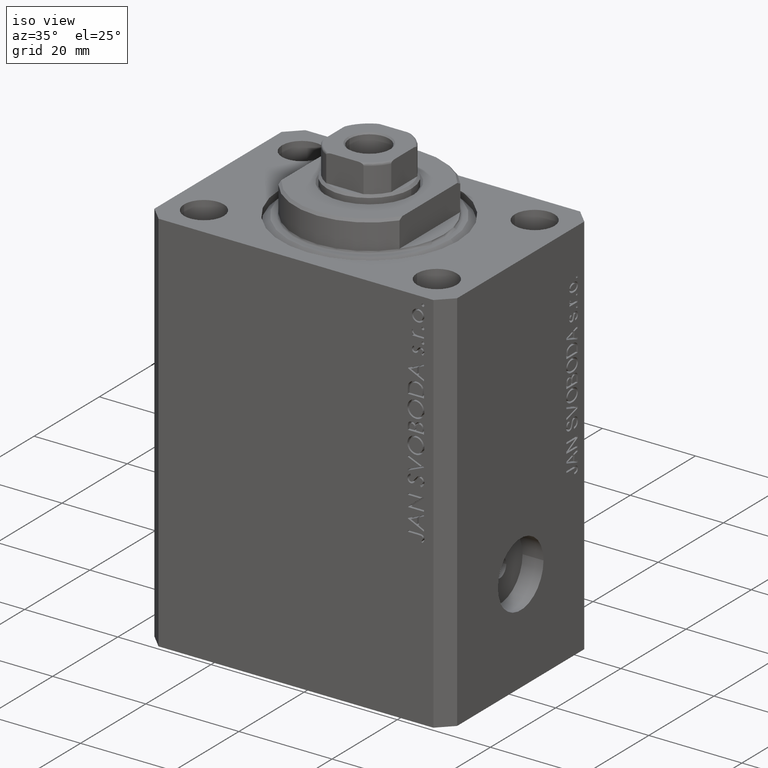
[diagram: clean part render]
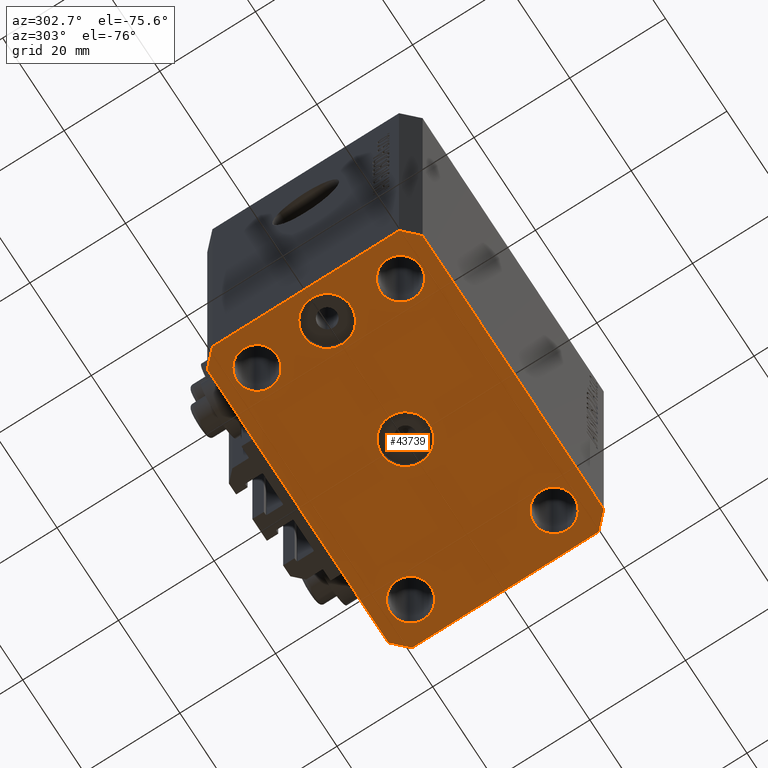
[diagram: tour spotlight — one face highlighted and labeled with its STEP entity id]
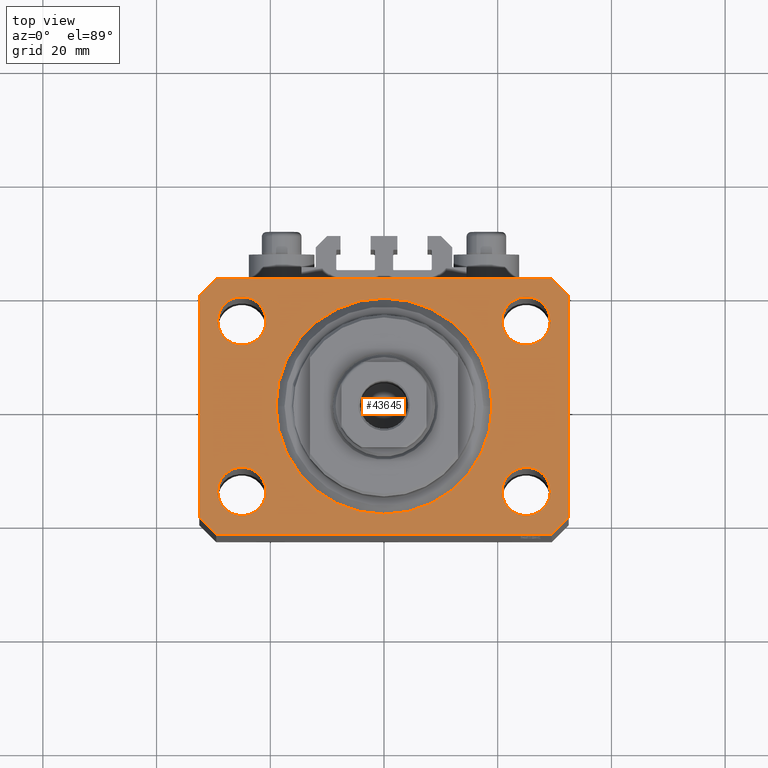
[diagram: tour spotlight — one face highlighted and labeled with its STEP entity id]
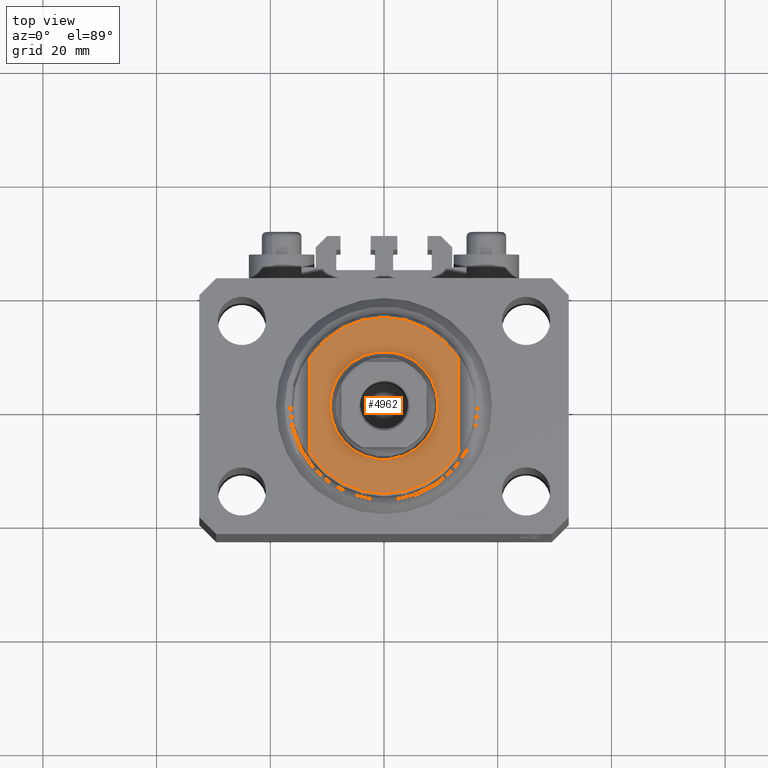
[diagram: tour spotlight — one face highlighted and labeled with its STEP entity id]
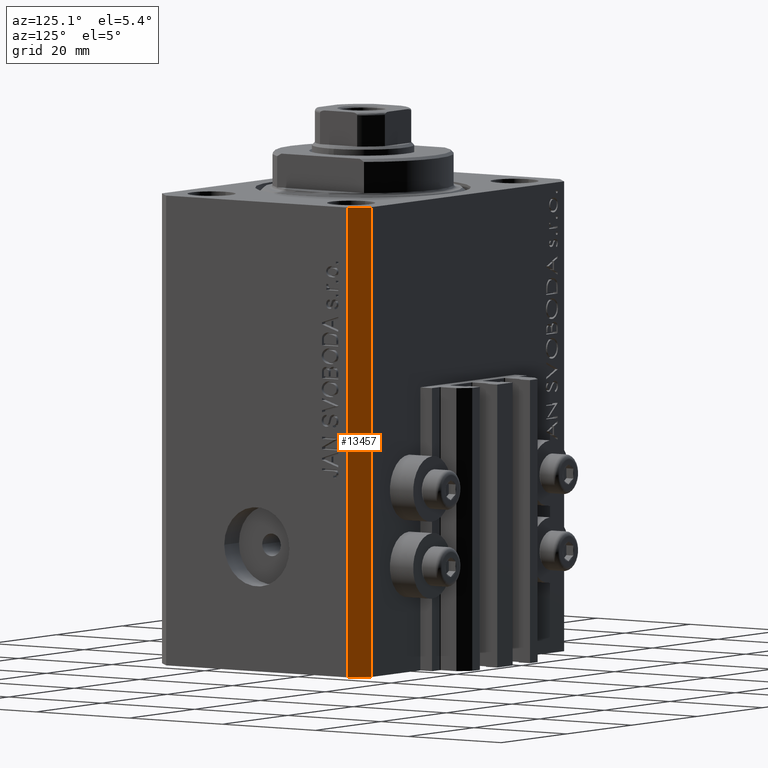
[diagram: tour spotlight — one face highlighted and labeled with its STEP entity id]
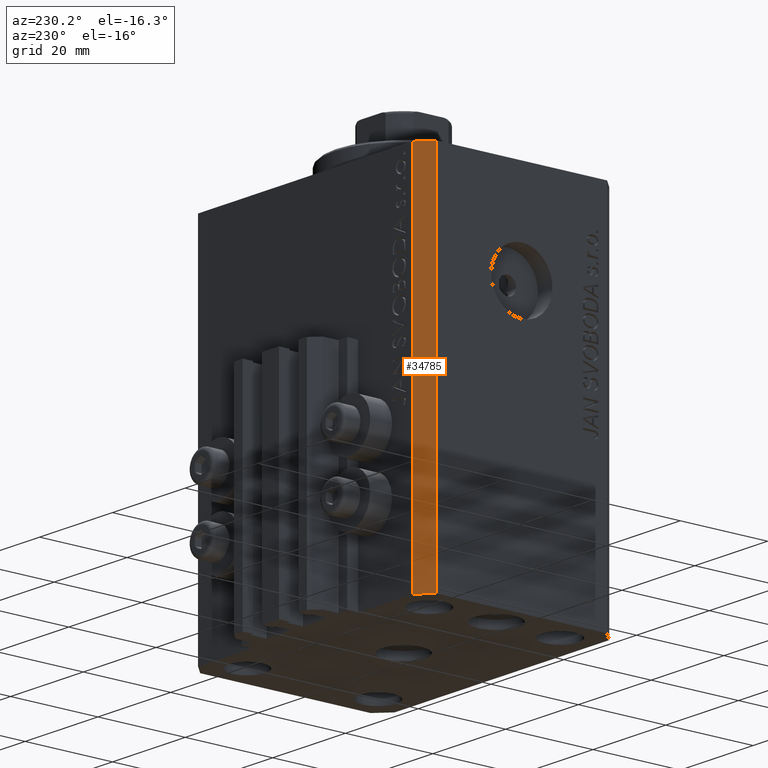
[diagram: tour spotlight — one face highlighted and labeled with its STEP entity id]
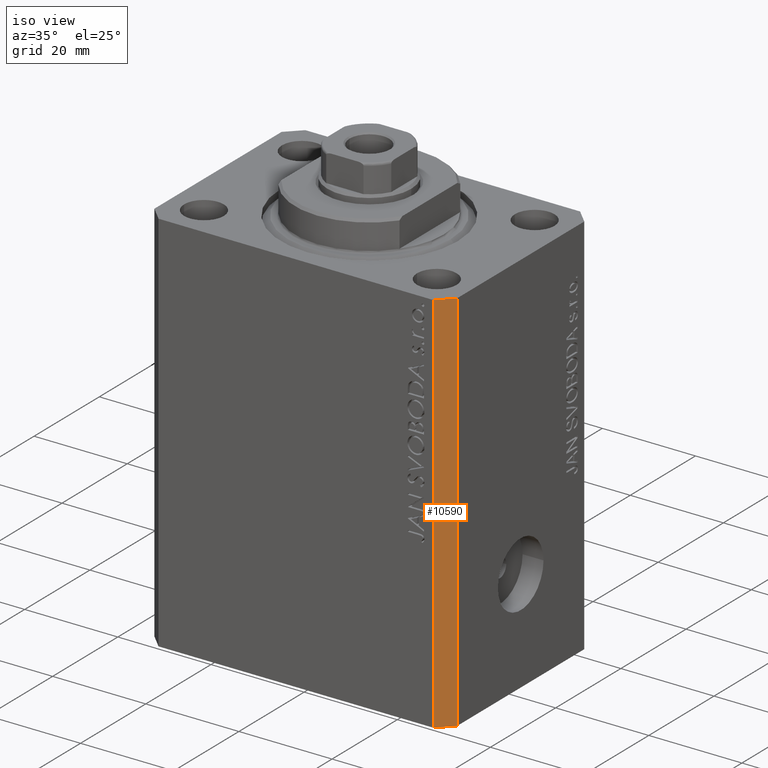
[diagram: tour spotlight — one face highlighted and labeled with its STEP entity id]
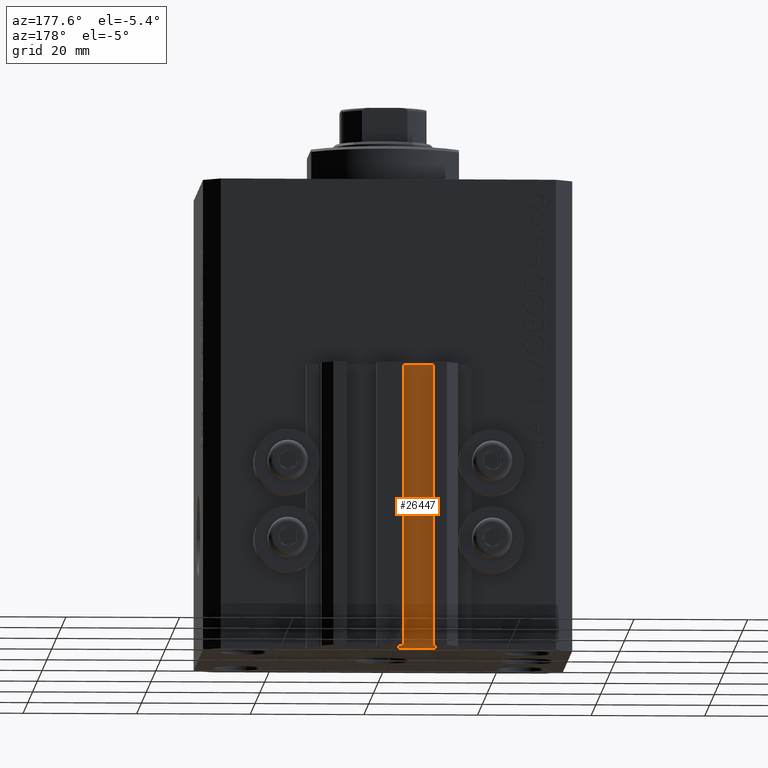
[diagram: tour spotlight — one face highlighted and labeled with its STEP entity id]
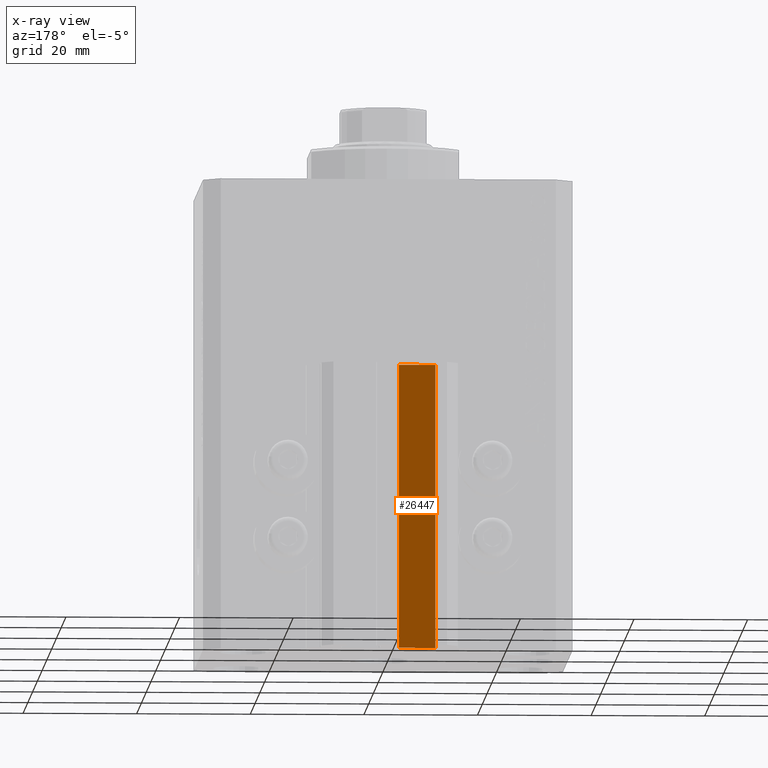
[diagram: x-ray of the same camera — body ghosted, this tour face saturated]
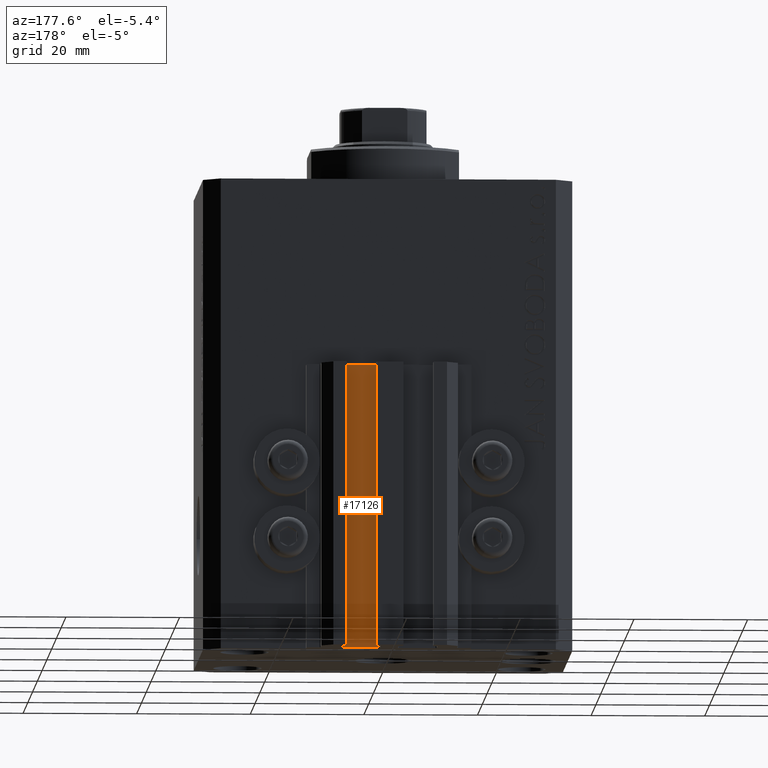
[diagram: tour spotlight — one face highlighted and labeled with its STEP entity id]
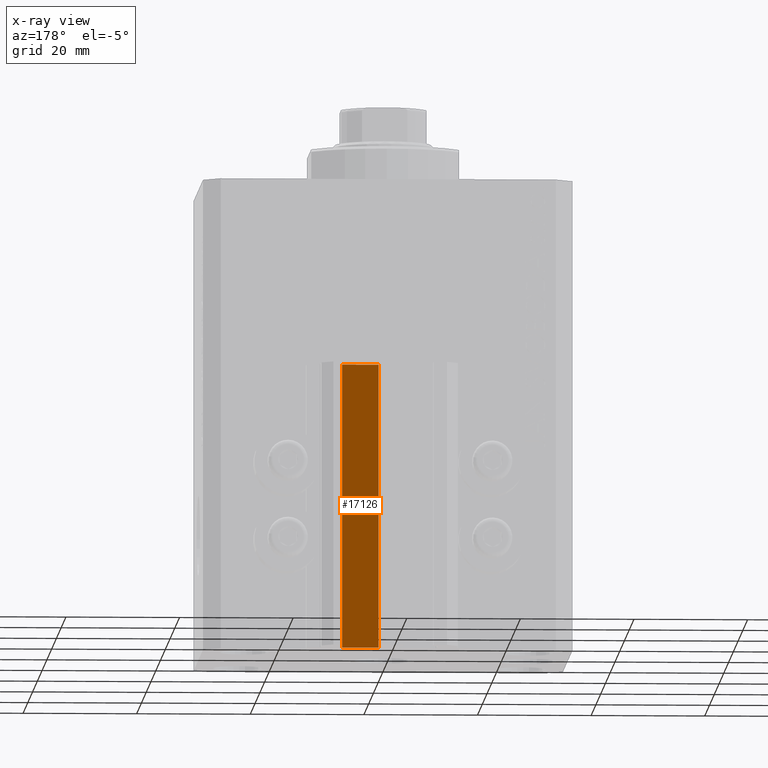
[diagram: x-ray of the same camera — body ghosted, this tour face saturated]
A machine part: a face-by-face anatomy tour. The part has 1042 B-rep faces; the first image is the clean iso view, then the 8 largest visible faces are spotlighted one at a time (largest first), each with its STEP entity span.

Face 1 — auxiliary view, entity #43739. In plain terms, the highlighted planar face has unit normal (0, 0, 1).
Definition (entity closure, byte-faithful):
#539 = FACE_BOUND ( 'NONE', #38878, .T. ) ;
#745 = VECTOR ( 'NONE', #749, 1000.000000000000114 ) ;
#749 = DIRECTION ( 'NONE',  ( -0.7071067811865474617, -0.7071067811865474617, 0.000000000000000000 ) ) ;
#814 = AXIS2_PLACEMENT_3D ( 'NONE', #9845, #21348, #24961 ) ;
#1069 = CARTESIAN_POINT ( 'NONE',  ( 0.000000000000000000, 0.000000000000000000, -83.00000000000000000 ) ) ;
#1123 = ORIENTED_EDGE ( 'NONE', *, *, #16047, .F. ) ;
#1713 = EDGE_CURVE ( 'NONE', #31021, #25996, #4602, .T. ) ;
#1813 = CARTESIAN_POINT ( 'NONE',  ( 20.75000000004271072, 14.99999999999999289, -83.00000000000000000 ) ) ;
#2284 = CARTESIAN_POINT ( 'NONE',  ( 32.49999999999651124, -19.49999999999949196, -83.00000000000000000 ) ) ;
#2513 = VECTOR ( 'NONE', #5669, 1000.000000000000000 ) ;
#2674 = AXIS2_PLACEMENT_3D ( 'NONE', #12493, #19927, #9826 ) ;
#2758 = DIRECTION ( 'NONE',  ( -0.000000000000000000, -0.000000000000000000, -1.000000000000000000 ) ) ;
#3363 = CIRCLE ( 'NONE', #31732, 4.250000000021375790 ) ;
#3724 = CARTESIAN_POINT ( 'NONE',  ( -25.50000000000000000, 0.000000000000000000, -83.00000000000000000 ) ) ;
#4049 = CARTESIAN_POINT ( 'NONE',  ( 29.24999999997631051, -15.00000000000000355, -83.00000000000000000 ) ) ;
#4064 = ORIENTED_EDGE ( 'NONE', *, *, #28239, .F. ) ;
#4374 = EDGE_CURVE ( 'NONE', #25305, #16553, #23045, .T. ) ;
#4571 = AXIS2_PLACEMENT_3D ( 'NONE', #22423, #36844, #11632 ) ;
#4602 = LINE ( 'NONE', #4843, #745 ) ;
#4697 = CIRCLE ( 'NONE', #12337, 4.250000000040370374 ) ;
#4843 = CARTESIAN_POINT ( 'NONE',  ( -29.49999999999650413, 22.49999999999949907, -83.00000000000000000 ) ) ;
#4994 = ORIENTED_EDGE ( 'NONE', *, *, #30030, .F. ) ;
#5417 = EDGE_CURVE ( 'NONE', #18345, #23256, #4697, .T. ) ;
#5669 = DIRECTION ( 'NONE',  ( 1.334402673828349134E-14, 1.000000000000000000, 0.000000000000000000 ) ) ;
#5919 = ORIENTED_EDGE ( 'NONE', *, *, #34618, .F. ) ;
#6129 = CIRCLE ( 'NONE', #4571, 4.249999999957291053 ) ;
#6249 = CARTESIAN_POINT ( 'NONE',  ( 24.99999999999999289, -15.00000000000000355, -83.00000000000000000 ) ) ;
#6309 = EDGE_LOOP ( 'NONE', ( #33701, #33253 ) ) ;
#6431 = EDGE_CURVE ( 'NONE', #27026, #39354, #9372, .T. ) ;
#6599 = CARTESIAN_POINT ( 'NONE',  ( -32.49999999999650413, -19.49999999999949907, -83.00000000000000000 ) ) ;
#7178 = LINE ( 'NONE', #28529, #42455 ) ;
#7203 = VERTEX_POINT ( 'NONE', #40845 ) ;
#7272 = CIRCLE ( 'NONE', #2674, 4.249999999957291053 ) ;
#7562 = DIRECTION ( 'NONE',  ( -1.000000000000000000, 0.000000000000000000, 0.000000000000000000 ) ) ;
#7635 = CIRCLE ( 'NONE', #22174, 4.250000000040370374 ) ;
#8024 = CARTESIAN_POINT ( 'NONE',  ( -30.49999999999665690, 0.000000000000000000, -83.00000000000000000 ) ) ;
#8089 = ORIENTED_EDGE ( 'NONE', *, *, #5417, .F. ) ;
#8162 = CARTESIAN_POINT ( 'NONE',  ( 29.49999999999650413, -22.49999999999949196, -83.00000000000000000 ) ) ;
#8339 = DIRECTION ( 'NONE',  ( 0.7071067811865483499, 0.7071067811865466846, 0.000000000000000000 ) ) ;
#8747 = VERTEX_POINT ( 'NONE', #31251 ) ;
#9372 = LINE ( 'NONE', #42013, #22969 ) ;
#9826 = DIRECTION ( 'NONE',  ( 1.000000000000000000, 0.000000000000000000, 0.000000000000000000 ) ) ;
#9845 = CARTESIAN_POINT ( 'NONE',  ( -25.50000000000000000, 0.000000000000000000, -83.00000000000000000 ) ) ;
#9874 = DIRECTION ( 'NONE',  ( 1.000000000000000000, 0.000000000000000000, 0.000000000000000000 ) ) ;
#10183 = DIRECTION ( 'NONE',  ( 1.000000000000000000, 0.000000000000000000, 0.000000000000000000 ) ) ;
#10229 = CARTESIAN_POINT ( 'NONE',  ( -20.74999999997862687, 14.99999999999999645, -83.00000000000000000 ) ) ;
#10464 = ORIENTED_EDGE ( 'NONE', *, *, #42454, .F. ) ;
#10578 = CARTESIAN_POINT ( 'NONE',  ( 29.49999999999707967, 22.49999999999952038, -83.00000000000000000 ) ) ;
#11136 = ORIENTED_EDGE ( 'NONE', *, *, #47316, .F. ) ;
#11282 = CARTESIAN_POINT ( 'NONE',  ( -32.49999999999650413, 19.49999999999949907, -83.00000000000000000 ) ) ;
#11342 = DIRECTION ( 'NONE',  ( 1.000000000000000000, 0.000000000000000000, -0.000000000000000000 ) ) ;
#11632 = DIRECTION ( 'NONE',  ( 1.000000000000000000, 0.000000000000000000, 0.000000000000000000 ) ) ;
#12041 = CARTESIAN_POINT ( 'NONE',  ( 20.75000000002367884, -15.00000000000000355, -83.00000000000000000 ) ) ;
#12337 = AXIS2_PLACEMENT_3D ( 'NONE', #46362, #28117, #9874 ) ;
#12485 = ORIENTED_EDGE ( 'NONE', *, *, #42988, .F. ) ;
#12493 = CARTESIAN_POINT ( 'NONE',  ( 25.00000000000000000, 14.99999999999999289, -83.00000000000000000 ) ) ;
#12716 = VERTEX_POINT ( 'NONE', #8162 ) ;
#12869 = EDGE_CURVE ( 'NONE', #38187, #12716, #42920, .T. ) ;
#13104 = ORIENTED_EDGE ( 'NONE', *, *, #6431, .F. ) ;
#13255 = AXIS2_PLACEMENT_3D ( 'NONE', #29855, #41146, #22649 ) ;
#13256 = EDGE_LOOP ( 'NONE', ( #5919, #4994 ) ) ;
#13383 = CIRCLE ( 'NONE', #29488, 4.249999999976314058 ) ;
#14127 = ORIENTED_EDGE ( 'NONE', *, *, #29004, .F. ) ;
#14726 = VECTOR ( 'NONE', #31416, 1000.000000000000000 ) ;
#14866 = DIRECTION ( 'NONE',  ( 0.000000000000000000, -1.000000000000000000, 0.000000000000000000 ) ) ;
#14930 = DIRECTION ( 'NONE',  ( 0.000000000000000000, 0.000000000000000000, 1.000000000000000000 ) ) ;
#15398 = FACE_BOUND ( 'NONE', #28449, .T. ) ;
#15793 = CARTESIAN_POINT ( 'NONE',  ( 29.49999999999707967, 22.49999999999952038, -83.00000000000000000 ) ) ;
#16002 = EDGE_CURVE ( 'NONE', #16553, #25305, #39079, .T. ) ;
#16047 = EDGE_CURVE ( 'NONE', #7203, #34806, #6129, .T. ) ;
#16440 = LINE ( 'NONE', #2284, #2513 ) ;
#16553 = VERTEX_POINT ( 'NONE', #36433 ) ;
#16971 = EDGE_CURVE ( 'NONE', #8747, #40794, #35993, .T. ) ;
#17561 = EDGE_LOOP ( 'NONE', ( #1123, #36745 ) ) ;
#17819 = CARTESIAN_POINT ( 'NONE',  ( -20.74999999995962341, -15.00000000000000355, -83.00000000000000000 ) ) ;
#17970 = CARTESIAN_POINT ( 'NONE',  ( -29.49999999999650413, -22.49999999999949907, -83.00000000000000000 ) ) ;
#18345 = VERTEX_POINT ( 'NONE', #24750 ) ;
#18623 = CIRCLE ( 'NONE', #13255, 5.000000000000000000 ) ;
#18761 = AXIS2_PLACEMENT_3D ( 'NONE', #35634, #2758, #10183 ) ;
#19927 = DIRECTION ( 'NONE',  ( -0.000000000000000000, -0.000000000000000000, -1.000000000000000000 ) ) ;
#21155 = EDGE_CURVE ( 'NONE', #39354, #31021, #30693, .T. ) ;
#21348 = DIRECTION ( 'NONE',  ( 0.000000000000000000, 0.000000000000000000, -1.000000000000000000 ) ) ;
#22174 = AXIS2_PLACEMENT_3D ( 'NONE', #32184, #31719, #28104 ) ;
#22373 = VECTOR ( 'NONE', #23482, 1000.000000000000000 ) ;
#22423 = CARTESIAN_POINT ( 'NONE',  ( 25.00000000000000000, 14.99999999999999289, -83.00000000000000000 ) ) ;
#22649 = DIRECTION ( 'NONE',  ( -1.000000000000000000, 0.000000000000000000, 0.000000000000000000 ) ) ;
#22969 = VECTOR ( 'NONE', #41542, 1000.000000000000000 ) ;
#23045 = CIRCLE ( 'NONE', #814, 4.999999999996659561 ) ;
#23087 = FACE_BOUND ( 'NONE', #17561, .T. ) ;
#23256 = VERTEX_POINT ( 'NONE', #17819 ) ;
#23482 = DIRECTION ( 'NONE',  ( -1.000000000000000000, -3.528251137580330676E-16, 0.000000000000000000 ) ) ;
#23510 = ORIENTED_EDGE ( 'NONE', *, *, #21155, .F. ) ;
#24750 = CARTESIAN_POINT ( 'NONE',  ( -29.25000000004036593, -15.00000000000000355, -83.00000000000000000 ) ) ;
#24772 = DIRECTION ( 'NONE',  ( 1.000000000000000000, 0.000000000000000000, 0.000000000000000000 ) ) ;
#24862 = CIRCLE ( 'NONE', #18761, 4.250000000021375790 ) ;
#24947 = ORIENTED_EDGE ( 'NONE', *, *, #26149, .F. ) ;
#24961 = DIRECTION ( 'NONE',  ( -1.000000000000000000, 0.000000000000000000, 0.000000000000000000 ) ) ;
#25095 = EDGE_CURVE ( 'NONE', #41005, #27026, #16440, .T. ) ;
#25305 = VERTEX_POINT ( 'NONE', #8024 ) ;
#25974 = FACE_BOUND ( 'NONE', #13256, .T. ) ;
#25996 = VERTEX_POINT ( 'NONE', #34721 ) ;
#26149 = EDGE_CURVE ( 'NONE', #40794, #8747, #18623, .T. ) ;
#27026 = VERTEX_POINT ( 'NONE', #30107 ) ;
#27123 = DIRECTION ( 'NONE',  ( 1.000000000000000000, 0.000000000000000000, 0.000000000000000000 ) ) ;
#27166 = CIRCLE ( 'NONE', #34858, 4.249999999976314058 ) ;
#27437 = VECTOR ( 'NONE', #8339, 1000.000000000000000 ) ;
#27561 = AXIS2_PLACEMENT_3D ( 'NONE', #3724, #32526, #7562 ) ;
#28104 = DIRECTION ( 'NONE',  ( 1.000000000000000000, 0.000000000000000000, 0.000000000000000000 ) ) ;
#28117 = DIRECTION ( 'NONE',  ( -0.000000000000000000, -0.000000000000000000, -1.000000000000000000 ) ) ;
#28239 = EDGE_CURVE ( 'NONE', #33868, #38187, #7178, .T. ) ;
#28291 = ORIENTED_EDGE ( 'NONE', *, *, #1713, .F. ) ;
#28371 = CARTESIAN_POINT ( 'NONE',  ( 24.99999999999999289, -15.00000000000000355, -83.00000000000000000 ) ) ;
#28449 = EDGE_LOOP ( 'NONE', ( #24947, #36696 ) ) ;
#28529 = CARTESIAN_POINT ( 'NONE',  ( -32.49999999999650413, -19.49999999999949907, -83.00000000000000000 ) ) ;
#29004 = EDGE_CURVE ( 'NONE', #46679, #40011, #3363, .T. ) ;
#29044 = LINE ( 'NONE', #11282, #34326 ) ;
#29365 = CARTESIAN_POINT ( 'NONE',  ( -25.00000000000000000, 14.99999999999999645, -83.00000000000000000 ) ) ;
#29488 = AXIS2_PLACEMENT_3D ( 'NONE', #6249, #38421, #27123 ) ;
#29584 = PLANE ( 'NONE',  #45863 ) ;
#29801 = EDGE_LOOP ( 'NONE', ( #23510, #13104, #36865, #12485, #39352, #4064, #10464, #28291 ) ) ;
#29855 = CARTESIAN_POINT ( 'NONE',  ( 0.000000000000000000, 0.000000000000000000, -83.00000000000000000 ) ) ;
#30030 = EDGE_CURVE ( 'NONE', #44126, #40559, #27166, .T. ) ;
#30107 = CARTESIAN_POINT ( 'NONE',  ( 32.49999999999702993, 19.49999999999945999, -83.00000000000000000 ) ) ;
#30693 = LINE ( 'NONE', #15793, #22373 ) ;
#31021 = VERTEX_POINT ( 'NONE', #39342 ) ;
#31251 = CARTESIAN_POINT ( 'NONE',  ( 5.000000000000000000, 6.123233995736765296E-16, -83.00000000000000000 ) ) ;
#31416 = DIRECTION ( 'NONE',  ( 1.000000000000000000, 1.176083712526788232E-16, 0.000000000000000000 ) ) ;
#31719 = DIRECTION ( 'NONE',  ( -0.000000000000000000, -0.000000000000000000, -1.000000000000000000 ) ) ;
#31732 = AXIS2_PLACEMENT_3D ( 'NONE', #29365, #36813, #44011 ) ;
#32184 = CARTESIAN_POINT ( 'NONE',  ( -24.99999999999999289, -15.00000000000000355, -83.00000000000000000 ) ) ;
#32297 = EDGE_LOOP ( 'NONE', ( #35592, #14127 ) ) ;
#32526 = DIRECTION ( 'NONE',  ( 0.000000000000000000, 0.000000000000000000, -1.000000000000000000 ) ) ;
#33245 = DIRECTION ( 'NONE',  ( 0.000000000000000000, 0.000000000000000000, -1.000000000000000000 ) ) ;
#33253 = ORIENTED_EDGE ( 'NONE', *, *, #16002, .F. ) ;
#33653 = FACE_BOUND ( 'NONE', #32297, .T. ) ;
#33701 = ORIENTED_EDGE ( 'NONE', *, *, #4374, .F. ) ;
#33868 = VERTEX_POINT ( 'NONE', #6599 ) ;
#33947 = EDGE_CURVE ( 'NONE', #40011, #46679, #24862, .T. ) ;
#34326 = VECTOR ( 'NONE', #14866, 1000.000000000000000 ) ;
#34616 = EDGE_CURVE ( 'NONE', #34806, #7203, #7272, .T. ) ;
#34618 = EDGE_CURVE ( 'NONE', #40559, #44126, #13383, .T. ) ;
#34721 = CARTESIAN_POINT ( 'NONE',  ( -32.49999999999650413, 19.49999999999949907, -83.00000000000000000 ) ) ;
#34806 = VERTEX_POINT ( 'NONE', #1813 ) ;
#34858 = AXIS2_PLACEMENT_3D ( 'NONE', #28371, #43493, #24772 ) ;
#34914 = CARTESIAN_POINT ( 'NONE',  ( -5.000000000000000000, 0.000000000000000000, -83.00000000000000000 ) ) ;
#35592 = ORIENTED_EDGE ( 'NONE', *, *, #33947, .F. ) ;
#35634 = CARTESIAN_POINT ( 'NONE',  ( -25.00000000000000000, 14.99999999999999645, -83.00000000000000000 ) ) ;
#35724 = CARTESIAN_POINT ( 'NONE',  ( -29.49999999999650413, -22.49999999999949907, -83.00000000000000000 ) ) ;
#35993 = CIRCLE ( 'NONE', #42133, 5.000000000000000000 ) ;
#36433 = CARTESIAN_POINT ( 'NONE',  ( -20.50000000000333955, 6.123233995732674066E-16, -83.00000000000000000 ) ) ;
#36696 = ORIENTED_EDGE ( 'NONE', *, *, #16971, .F. ) ;
#36745 = ORIENTED_EDGE ( 'NONE', *, *, #34616, .F. ) ;
#36813 = DIRECTION ( 'NONE',  ( -0.000000000000000000, -0.000000000000000000, -1.000000000000000000 ) ) ;
#36844 = DIRECTION ( 'NONE',  ( -0.000000000000000000, -0.000000000000000000, -1.000000000000000000 ) ) ;
#36865 = ORIENTED_EDGE ( 'NONE', *, *, #25095, .F. ) ;
#37094 = DIRECTION ( 'NONE',  ( -1.000000000000000000, 0.000000000000000000, 0.000000000000000000 ) ) ;
#37497 = CARTESIAN_POINT ( 'NONE',  ( 0.000000000000000000, 0.000000000000000000, -83.00000000000000000 ) ) ;
#38187 = VERTEX_POINT ( 'NONE', #17970 ) ;
#38421 = DIRECTION ( 'NONE',  ( -0.000000000000000000, -0.000000000000000000, -1.000000000000000000 ) ) ;
#38878 = EDGE_LOOP ( 'NONE', ( #11136, #8089 ) ) ;
#39079 = CIRCLE ( 'NONE', #27561, 4.999999999996659561 ) ;
#39342 = CARTESIAN_POINT ( 'NONE',  ( -29.49999999999650413, 22.49999999999949907, -83.00000000000000000 ) ) ;
#39352 = ORIENTED_EDGE ( 'NONE', *, *, #12869, .F. ) ;
#39354 = VERTEX_POINT ( 'NONE', #10578 ) ;
#39431 = CARTESIAN_POINT ( 'NONE',  ( 32.49999999999651124, -19.49999999999949196, -83.00000000000000000 ) ) ;
#40011 = VERTEX_POINT ( 'NONE', #10229 ) ;
#40559 = VERTEX_POINT ( 'NONE', #4049 ) ;
#40637 = FACE_OUTER_BOUND ( 'NONE', #29801, .T. ) ;
#40794 = VERTEX_POINT ( 'NONE', #34914 ) ;
#40845 = CARTESIAN_POINT ( 'NONE',  ( 29.24999999995729283, 14.99999999999999289, -83.00000000000000000 ) ) ;
#41005 = VERTEX_POINT ( 'NONE', #39431 ) ;
#41146 = DIRECTION ( 'NONE',  ( 0.000000000000000000, 0.000000000000000000, -1.000000000000000000 ) ) ;
#41219 = CARTESIAN_POINT ( 'NONE',  ( 29.49999999999650413, -22.49999999999949196, -83.00000000000000000 ) ) ;
#41542 = DIRECTION ( 'NONE',  ( -0.7071067811865344721, 0.7071067811865606734, 0.000000000000000000 ) ) ;
#41640 = CARTESIAN_POINT ( 'NONE',  ( -29.25000000002137668, 14.99999999999999645, -83.00000000000000000 ) ) ;
#42013 = CARTESIAN_POINT ( 'NONE',  ( 32.49999999999702993, 19.49999999999945999, -83.00000000000000000 ) ) ;
#42133 = AXIS2_PLACEMENT_3D ( 'NONE', #1069, #33245, #37094 ) ;
#42454 = EDGE_CURVE ( 'NONE', #25996, #33868, #29044, .T. ) ;
#42455 = VECTOR ( 'NONE', #43417, 1000.000000000000114 ) ;
#42920 = LINE ( 'NONE', #35724, #14726 ) ;
#42988 = EDGE_CURVE ( 'NONE', #12716, #41005, #44570, .T. ) ;
#43417 = DIRECTION ( 'NONE',  ( 0.7071067811865474617, -0.7071067811865474617, 0.000000000000000000 ) ) ;
#43493 = DIRECTION ( 'NONE',  ( -0.000000000000000000, -0.000000000000000000, -1.000000000000000000 ) ) ;
#43739 = ADVANCED_FACE ( 'NONE', ( #15398, #43989, #539, #25974, #23087, #33653, #40637 ), #29584, .F. ) ;
#43989 = FACE_BOUND ( 'NONE', #6309, .T. ) ;
#44011 = DIRECTION ( 'NONE',  ( 1.000000000000000000, 0.000000000000000000, 0.000000000000000000 ) ) ;
#44126 = VERTEX_POINT ( 'NONE', #12041 ) ;
#44570 = LINE ( 'NONE', #41219, #27437 ) ;
#45863 = AXIS2_PLACEMENT_3D ( 'NONE', #37497, #14930, #11342 ) ;
#46362 = CARTESIAN_POINT ( 'NONE',  ( -24.99999999999999289, -15.00000000000000355, -83.00000000000000000 ) ) ;
#46679 = VERTEX_POINT ( 'NONE', #41640 ) ;
#47316 = EDGE_CURVE ( 'NONE', #23256, #18345, #7635, .T. ) ;

Face 2 — top view, entity #43645. In plain terms, the highlighted planar face has unit normal (0, 0, 1).
Definition (entity closure, byte-faithful):
#21 = CARTESIAN_POINT ( 'NONE',  ( 25.00000000000000000, 14.99999999999999289, 0.000000000000000000 ) ) ;
#776 = CIRCLE ( 'NONE', #4627, 4.250000000040370374 ) ;
#1630 = CARTESIAN_POINT ( 'NONE',  ( 29.49999999999650413, -22.49999999999949196, 0.000000000000000000 ) ) ;
#1660 = VECTOR ( 'NONE', #20464, 1000.000000000000114 ) ;
#2004 = LINE ( 'NONE', #15907, #1660 ) ;
#2036 = CARTESIAN_POINT ( 'NONE',  ( 29.24999999995729283, 14.99999999999999289, 0.000000000000000000 ) ) ;
#2136 = EDGE_CURVE ( 'NONE', #25224, #9774, #776, .T. ) ;
#2238 = DIRECTION ( 'NONE',  ( 1.000000000000000000, 0.000000000000000000, 0.000000000000000000 ) ) ;
#2739 = DIRECTION ( 'NONE',  ( 1.000000000000000000, 1.176083712526788232E-16, 0.000000000000000000 ) ) ;
#2794 = CARTESIAN_POINT ( 'NONE',  ( -29.49999999999650413, 22.49999999999949907, 0.000000000000000000 ) ) ;
#2934 = DIRECTION ( 'NONE',  ( 0.000000000000000000, 0.000000000000000000, 1.000000000000000000 ) ) ;
#2953 = CARTESIAN_POINT ( 'NONE',  ( 29.49999999999650413, -22.49999999999949196, 0.000000000000000000 ) ) ;
#3702 = DIRECTION ( 'NONE',  ( 0.7071067811865474617, -0.7071067811865474617, 0.000000000000000000 ) ) ;
#4557 = DIRECTION ( 'NONE',  ( 0.000000000000000000, 0.000000000000000000, 1.000000000000000000 ) ) ;
#4627 = AXIS2_PLACEMENT_3D ( 'NONE', #36893, #29917, #26788 ) ;
#6574 = FACE_BOUND ( 'NONE', #18512, .T. ) ;
#6674 = VERTEX_POINT ( 'NONE', #29485 ) ;
#6685 = DIRECTION ( 'NONE',  ( 1.334402673828349134E-14, 1.000000000000000000, 0.000000000000000000 ) ) ;
#6731 = VERTEX_POINT ( 'NONE', #8612 ) ;
#6784 = AXIS2_PLACEMENT_3D ( 'NONE', #17588, #32949, #39218 ) ;
#7169 = VECTOR ( 'NONE', #20949, 1000.000000000000000 ) ;
#7271 = CARTESIAN_POINT ( 'NONE',  ( 19.00000000000000000, 0.000000000000000000, 0.000000000000000000 ) ) ;
#7281 = FACE_BOUND ( 'NONE', #31791, .T. ) ;
#7567 = CARTESIAN_POINT ( 'NONE',  ( 0.000000000000000000, 0.000000000000000000, 0.000000000000000000 ) ) ;
#7964 = LINE ( 'NONE', #11785, #37414 ) ;
#8416 = CARTESIAN_POINT ( 'NONE',  ( -29.25000000004036593, -15.00000000000000355, 0.000000000000000000 ) ) ;
#8611 = VERTEX_POINT ( 'NONE', #26227 ) ;
#8612 = CARTESIAN_POINT ( 'NONE',  ( -32.49999999999650413, 19.49999999999949907, 0.000000000000000000 ) ) ;
#8736 = CARTESIAN_POINT ( 'NONE',  ( -20.74999999995962341, -15.00000000000000355, 0.000000000000000000 ) ) ;
#8885 = CARTESIAN_POINT ( 'NONE',  ( 29.24999999997631051, -15.00000000000000355, 0.000000000000000000 ) ) ;
#9158 = CARTESIAN_POINT ( 'NONE',  ( 20.75000000004271072, 14.99999999999999289, 0.000000000000000000 ) ) ;
#9523 = EDGE_CURVE ( 'NONE', #32912, #12569, #36864, .T. ) ;
#9577 = CARTESIAN_POINT ( 'NONE',  ( 25.00000000000000000, 14.99999999999999289, 0.000000000000000000 ) ) ;
#9774 = VERTEX_POINT ( 'NONE', #8416 ) ;
#9911 = LINE ( 'NONE', #2953, #7169 ) ;
#10505 = CARTESIAN_POINT ( 'NONE',  ( 32.49999999999651124, -19.49999999999949196, 0.000000000000000000 ) ) ;
#10933 = AXIS2_PLACEMENT_3D ( 'NONE', #9577, #31420, #28279 ) ;
#11073 = EDGE_CURVE ( 'NONE', #6731, #42128, #7964, .T. ) ;
#11079 = EDGE_CURVE ( 'NONE', #39485, #6674, #11375, .T. ) ;
#11283 = CARTESIAN_POINT ( 'NONE',  ( 29.49999999999707967, 22.49999999999952038, 0.000000000000000000 ) ) ;
#11375 = CIRCLE ( 'NONE', #38210, 4.249999999976314058 ) ;
#11655 = ORIENTED_EDGE ( 'NONE', *, *, #2136, .F. ) ;
#11785 = CARTESIAN_POINT ( 'NONE',  ( -32.49999999999650413, 19.49999999999949907, 0.000000000000000000 ) ) ;
#12569 = VERTEX_POINT ( 'NONE', #11283 ) ;
#12822 = DIRECTION ( 'NONE',  ( -1.000000000000000000, -3.528251137580330676E-16, 0.000000000000000000 ) ) ;
#13199 = VERTEX_POINT ( 'NONE', #2794 ) ;
#13259 = DIRECTION ( 'NONE',  ( 1.000000000000000000, 0.000000000000000000, 0.000000000000000000 ) ) ;
#13422 = ORIENTED_EDGE ( 'NONE', *, *, #11079, .F. ) ;
#13629 = LINE ( 'NONE', #10505, #46339 ) ;
#13685 = VECTOR ( 'NONE', #12822, 1000.000000000000000 ) ;
#13817 = EDGE_CURVE ( 'NONE', #15198, #33109, #21653, .T. ) ;
#14248 = LINE ( 'NONE', #22157, #44832 ) ;
#14781 = CARTESIAN_POINT ( 'NONE',  ( 32.49999999999702993, 19.49999999999945999, 0.000000000000000000 ) ) ;
#14905 = EDGE_CURVE ( 'NONE', #44569, #27177, #44574, .T. ) ;
#15198 = VERTEX_POINT ( 'NONE', #9158 ) ;
#15331 = DIRECTION ( 'NONE',  ( 1.000000000000000000, 0.000000000000000000, 0.000000000000000000 ) ) ;
#15907 = CARTESIAN_POINT ( 'NONE',  ( -29.49999999999650413, 22.49999999999949907, 0.000000000000000000 ) ) ;
#16043 = CARTESIAN_POINT ( 'NONE',  ( -24.99999999999999289, -15.00000000000000355, 0.000000000000000000 ) ) ;
#16456 = EDGE_LOOP ( 'NONE', ( #32230, #26365 ) ) ;
#16491 = EDGE_LOOP ( 'NONE', ( #11655, #33331 ) ) ;
#16638 = LINE ( 'NONE', #45697, #13685 ) ;
#16851 = CARTESIAN_POINT ( 'NONE',  ( 24.99999999999999289, -15.00000000000000355, 0.000000000000000000 ) ) ;
#16864 = CARTESIAN_POINT ( 'NONE',  ( 0.000000000000000000, 0.000000000000000000, 0.000000000000000000 ) ) ;
#17445 = AXIS2_PLACEMENT_3D ( 'NONE', #16043, #4557, #15331 ) ;
#17588 = CARTESIAN_POINT ( 'NONE',  ( 0.000000000000000000, 0.000000000000000000, 0.000000000000000000 ) ) ;
#17880 = DIRECTION ( 'NONE',  ( 1.000000000000000000, 0.000000000000000000, 0.000000000000000000 ) ) ;
#18128 = CARTESIAN_POINT ( 'NONE',  ( 32.49999999999702993, 19.49999999999945999, 0.000000000000000000 ) ) ;
#18130 = AXIS2_PLACEMENT_3D ( 'NONE', #32262, #36573, #24812 ) ;
#18512 = EDGE_LOOP ( 'NONE', ( #13422, #34419 ) ) ;
#19643 = VERTEX_POINT ( 'NONE', #1630 ) ;
#19695 = DIRECTION ( 'NONE',  ( 0.000000000000000000, 0.000000000000000000, 1.000000000000000000 ) ) ;
#20464 = DIRECTION ( 'NONE',  ( -0.7071067811865474617, -0.7071067811865474617, 0.000000000000000000 ) ) ;
#20591 = EDGE_CURVE ( 'NONE', #13199, #6731, #2004, .T. ) ;
#20779 = CARTESIAN_POINT ( 'NONE',  ( -32.49999999999650413, -19.49999999999949907, 0.000000000000000000 ) ) ;
#20949 = DIRECTION ( 'NONE',  ( 0.7071067811865483499, 0.7071067811865466846, 0.000000000000000000 ) ) ;
#20963 = LINE ( 'NONE', #35615, #34666 ) ;
#21653 = CIRCLE ( 'NONE', #10933, 4.249999999957291053 ) ;
#22073 = DIRECTION ( 'NONE',  ( 1.000000000000000000, 0.000000000000000000, 0.000000000000000000 ) ) ;
#22157 = CARTESIAN_POINT ( 'NONE',  ( -32.49999999999650413, -19.49999999999949907, 0.000000000000000000 ) ) ;
#22708 = EDGE_CURVE ( 'NONE', #41915, #32912, #13629, .T. ) ;
#22809 = DIRECTION ( 'NONE',  ( 0.000000000000000000, -1.000000000000000000, 0.000000000000000000 ) ) ;
#23295 = CARTESIAN_POINT ( 'NONE',  ( 24.99999999999999289, -15.00000000000000355, 0.000000000000000000 ) ) ;
#23593 = CARTESIAN_POINT ( 'NONE',  ( -29.49999999999650413, -22.49999999999949907, 0.000000000000000000 ) ) ;
#23880 = EDGE_LOOP ( 'NONE', ( #26953, #27981 ) ) ;
#24031 = EDGE_CURVE ( 'NONE', #29968, #19643, #20963, .T. ) ;
#24212 = AXIS2_PLACEMENT_3D ( 'NONE', #38297, #35869, #39473 ) ;
#24415 = ORIENTED_EDGE ( 'NONE', *, *, #22708, .T. ) ;
#24560 = FACE_OUTER_BOUND ( 'NONE', #38357, .T. ) ;
#24812 = DIRECTION ( 'NONE',  ( 1.000000000000000000, 0.000000000000000000, 0.000000000000000000 ) ) ;
#25224 = VERTEX_POINT ( 'NONE', #8736 ) ;
#26227 = CARTESIAN_POINT ( 'NONE',  ( -29.25000000002137668, 14.99999999999999645, 0.000000000000000000 ) ) ;
#26255 = VECTOR ( 'NONE', #44057, 1000.000000000000000 ) ;
#26365 = ORIENTED_EDGE ( 'NONE', *, *, #13817, .F. ) ;
#26788 = DIRECTION ( 'NONE',  ( 1.000000000000000000, 0.000000000000000000, 0.000000000000000000 ) ) ;
#26953 = ORIENTED_EDGE ( 'NONE', *, *, #37739, .F. ) ;
#27100 = EDGE_CURVE ( 'NONE', #19643, #41915, #9911, .T. ) ;
#27177 = VERTEX_POINT ( 'NONE', #7271 ) ;
#27658 = ORIENTED_EDGE ( 'NONE', *, *, #35105, .T. ) ;
#27981 = ORIENTED_EDGE ( 'NONE', *, *, #40204, .F. ) ;
#28279 = DIRECTION ( 'NONE',  ( 1.000000000000000000, 0.000000000000000000, 0.000000000000000000 ) ) ;
#28469 = AXIS2_PLACEMENT_3D ( 'NONE', #16864, #35124, #2238 ) ;
#29395 = DIRECTION ( 'NONE',  ( 0.000000000000000000, 0.000000000000000000, 1.000000000000000000 ) ) ;
#29479 = ORIENTED_EDGE ( 'NONE', *, *, #20591, .T. ) ;
#29485 = CARTESIAN_POINT ( 'NONE',  ( 20.75000000002367884, -15.00000000000000355, 0.000000000000000000 ) ) ;
#29917 = DIRECTION ( 'NONE',  ( 0.000000000000000000, 0.000000000000000000, 1.000000000000000000 ) ) ;
#29968 = VERTEX_POINT ( 'NONE', #23593 ) ;
#30556 = AXIS2_PLACEMENT_3D ( 'NONE', #7567, #29395, #17880 ) ;
#31075 = AXIS2_PLACEMENT_3D ( 'NONE', #16851, #2934, #13259 ) ;
#31420 = DIRECTION ( 'NONE',  ( 0.000000000000000000, 0.000000000000000000, 1.000000000000000000 ) ) ;
#31791 = EDGE_LOOP ( 'NONE', ( #33448, #37361 ) ) ;
#31966 = CIRCLE ( 'NONE', #18130, 4.250000000021375790 ) ;
#32095 = CIRCLE ( 'NONE', #30556, 19.00000000000000000 ) ;
#32230 = ORIENTED_EDGE ( 'NONE', *, *, #46018, .F. ) ;
#32262 = CARTESIAN_POINT ( 'NONE',  ( -25.00000000000000000, 14.99999999999999645, 0.000000000000000000 ) ) ;
#32424 = DIRECTION ( 'NONE',  ( 0.000000000000000000, 0.000000000000000000, 1.000000000000000000 ) ) ;
#32717 = FACE_BOUND ( 'NONE', #16456, .T. ) ;
#32912 = VERTEX_POINT ( 'NONE', #14781 ) ;
#32949 = DIRECTION ( 'NONE',  ( 0.000000000000000000, 0.000000000000000000, 1.000000000000000000 ) ) ;
#33109 = VERTEX_POINT ( 'NONE', #2036 ) ;
#33331 = ORIENTED_EDGE ( 'NONE', *, *, #42680, .F. ) ;
#33363 = CIRCLE ( 'NONE', #31075, 4.249999999976314058 ) ;
#33448 = ORIENTED_EDGE ( 'NONE', *, *, #44713, .F. ) ;
#34419 = ORIENTED_EDGE ( 'NONE', *, *, #35201, .F. ) ;
#34666 = VECTOR ( 'NONE', #2739, 1000.000000000000000 ) ;
#34748 = VERTEX_POINT ( 'NONE', #43192 ) ;
#35105 = EDGE_CURVE ( 'NONE', #42128, #29968, #14248, .T. ) ;
#35124 = DIRECTION ( 'NONE',  ( 0.000000000000000000, 0.000000000000000000, 1.000000000000000000 ) ) ;
#35201 = EDGE_CURVE ( 'NONE', #6674, #39485, #33363, .T. ) ;
#35615 = CARTESIAN_POINT ( 'NONE',  ( -29.49999999999650413, -22.49999999999949907, 0.000000000000000000 ) ) ;
#35666 = CARTESIAN_POINT ( 'NONE',  ( -19.00000000000000000, 2.326828918379970970E-15, 0.000000000000000000 ) ) ;
#35847 = PLANE ( 'NONE',  #6784 ) ;
#35869 = DIRECTION ( 'NONE',  ( 0.000000000000000000, 0.000000000000000000, 1.000000000000000000 ) ) ;
#35965 = CIRCLE ( 'NONE', #43636, 4.249999999957291053 ) ;
#36573 = DIRECTION ( 'NONE',  ( 0.000000000000000000, 0.000000000000000000, 1.000000000000000000 ) ) ;
#36864 = LINE ( 'NONE', #18128, #26255 ) ;
#36893 = CARTESIAN_POINT ( 'NONE',  ( -24.99999999999999289, -15.00000000000000355, 0.000000000000000000 ) ) ;
#37230 = DIRECTION ( 'NONE',  ( 1.000000000000000000, 0.000000000000000000, 0.000000000000000000 ) ) ;
#37361 = ORIENTED_EDGE ( 'NONE', *, *, #14905, .F. ) ;
#37414 = VECTOR ( 'NONE', #22809, 1000.000000000000000 ) ;
#37739 = EDGE_CURVE ( 'NONE', #34748, #8611, #38036, .T. ) ;
#37768 = ORIENTED_EDGE ( 'NONE', *, *, #24031, .T. ) ;
#38036 = CIRCLE ( 'NONE', #24212, 4.250000000021375790 ) ;
#38164 = CIRCLE ( 'NONE', #17445, 4.250000000040370374 ) ;
#38210 = AXIS2_PLACEMENT_3D ( 'NONE', #23295, #19695, #37230 ) ;
#38297 = CARTESIAN_POINT ( 'NONE',  ( -25.00000000000000000, 14.99999999999999645, 0.000000000000000000 ) ) ;
#38357 = EDGE_LOOP ( 'NONE', ( #42327, #29479, #46257, #27658, #37768, #44665, #24415, #47377 ) ) ;
#39218 = DIRECTION ( 'NONE',  ( 1.000000000000000000, 0.000000000000000000, -0.000000000000000000 ) ) ;
#39473 = DIRECTION ( 'NONE',  ( 1.000000000000000000, 0.000000000000000000, 0.000000000000000000 ) ) ;
#39485 = VERTEX_POINT ( 'NONE', #8885 ) ;
#39786 = CARTESIAN_POINT ( 'NONE',  ( 32.49999999999651124, -19.49999999999949196, 0.000000000000000000 ) ) ;
#40204 = EDGE_CURVE ( 'NONE', #8611, #34748, #31966, .T. ) ;
#41915 = VERTEX_POINT ( 'NONE', #39786 ) ;
#42128 = VERTEX_POINT ( 'NONE', #20779 ) ;
#42327 = ORIENTED_EDGE ( 'NONE', *, *, #44984, .T. ) ;
#42680 = EDGE_CURVE ( 'NONE', #9774, #25224, #38164, .T. ) ;
#43192 = CARTESIAN_POINT ( 'NONE',  ( -20.74999999997862687, 14.99999999999999645, 0.000000000000000000 ) ) ;
#43636 = AXIS2_PLACEMENT_3D ( 'NONE', #21, #32424, #22073 ) ;
#43645 = ADVANCED_FACE ( 'NONE', ( #7281, #46882, #6574, #32717, #47352, #24560 ), #35847, .T. ) ;
#44057 = DIRECTION ( 'NONE',  ( -0.7071067811865344721, 0.7071067811865606734, 0.000000000000000000 ) ) ;
#44569 = VERTEX_POINT ( 'NONE', #35666 ) ;
#44574 = CIRCLE ( 'NONE', #28469, 19.00000000000000000 ) ;
#44665 = ORIENTED_EDGE ( 'NONE', *, *, #27100, .T. ) ;
#44713 = EDGE_CURVE ( 'NONE', #27177, #44569, #32095, .T. ) ;
#44832 = VECTOR ( 'NONE', #3702, 1000.000000000000114 ) ;
#44984 = EDGE_CURVE ( 'NONE', #12569, #13199, #16638, .T. ) ;
#45697 = CARTESIAN_POINT ( 'NONE',  ( 29.49999999999707967, 22.49999999999952038, 0.000000000000000000 ) ) ;
#46018 = EDGE_CURVE ( 'NONE', #33109, #15198, #35965, .T. ) ;
#46257 = ORIENTED_EDGE ( 'NONE', *, *, #11073, .T. ) ;
#46339 = VECTOR ( 'NONE', #6685, 1000.000000000000000 ) ;
#46882 = FACE_BOUND ( 'NONE', #16491, .T. ) ;
#47352 = FACE_BOUND ( 'NONE', #23880, .T. ) ;
#47377 = ORIENTED_EDGE ( 'NONE', *, *, #9523, .T. ) ;

Face 3 — top view, entity #4962. In plain terms, the highlighted planar face has unit normal (0, 0, 1).
Definition (entity closure, byte-faithful):
#54 = CARTESIAN_POINT ( 'NONE',  ( -13.00000000000000000, -8.440971508067139695, -6.500000000000000000 ) ) ;
#89 = CIRCLE ( 'NONE', #33791, 9.500000000000015987 ) ;
#1002 = DIRECTION ( 'NONE',  ( -1.000000000000000000, 0.000000000000000000, -0.000000000000000000 ) ) ;
#1106 = CARTESIAN_POINT ( 'NONE',  ( 13.00000000000000000, -43.08131845707602992, -6.500000000000000000 ) ) ;
#1303 = CARTESIAN_POINT ( 'NONE',  ( -13.00000000000000000, -43.08131845707602992, -6.500000000000000000 ) ) ;
#4613 = DIRECTION ( 'NONE',  ( 0.000000000000000000, 0.000000000000000000, -1.000000000000000000 ) ) ;
#4962 = ADVANCED_FACE ( 'NONE', ( #44919, #22604 ), #11334, .T. ) ;
#5200 = LINE ( 'NONE', #1106, #21675 ) ;
#5864 = CARTESIAN_POINT ( 'NONE',  ( -9.500000000000015987, 0.000000000000000000, -6.500000000000000000 ) ) ;
#5933 = CIRCLE ( 'NONE', #32749, 15.50000000000003730 ) ;
#7521 = EDGE_CURVE ( 'NONE', #16311, #16257, #16118, .T. ) ;
#7955 = DIRECTION ( 'NONE',  ( -0.000000000000000000, -0.000000000000000000, 1.000000000000000000 ) ) ;
#10546 = DIRECTION ( 'NONE',  ( -1.000000000000000000, 0.000000000000000000, 0.000000000000000000 ) ) ;
#11038 = VERTEX_POINT ( 'NONE', #45376 ) ;
#11334 = PLANE ( 'NONE',  #21537 ) ;
#11970 = ORIENTED_EDGE ( 'NONE', *, *, #25983, .T. ) ;
#13345 = CARTESIAN_POINT ( 'NONE',  ( 0.000000000000000000, 0.000000000000000000, -6.500000000000000000 ) ) ;
#13625 = DIRECTION ( 'NONE',  ( -1.000000000000000000, 0.000000000000000000, 0.000000000000000000 ) ) ;
#16118 = CIRCLE ( 'NONE', #23804, 9.500000000000015987 ) ;
#16257 = VERTEX_POINT ( 'NONE', #41392 ) ;
#16311 = VERTEX_POINT ( 'NONE', #5864 ) ;
#17550 = VECTOR ( 'NONE', #34435, 1000.000000000000000 ) ;
#18534 = CARTESIAN_POINT ( 'NONE',  ( -13.00000000000000000, 8.440971508067139695, -6.500000000000000000 ) ) ;
#19204 = EDGE_CURVE ( 'NONE', #16257, #16311, #89, .T. ) ;
#19320 = CIRCLE ( 'NONE', #33131, 15.50000000000003730 ) ;
#19806 = ORIENTED_EDGE ( 'NONE', *, *, #7521, .T. ) ;
#21537 = AXIS2_PLACEMENT_3D ( 'NONE', #37490, #4613, #1002 ) ;
#21675 = VECTOR ( 'NONE', #45508, 1000.000000000000000 ) ;
#22604 = FACE_OUTER_BOUND ( 'NONE', #42243, .T. ) ;
#23096 = EDGE_CURVE ( 'NONE', #43787, #30193, #41638, .T. ) ;
#23757 = EDGE_CURVE ( 'NONE', #43787, #11038, #19320, .T. ) ;
#23804 = AXIS2_PLACEMENT_3D ( 'NONE', #46552, #47268, #10546 ) ;
#25983 = EDGE_CURVE ( 'NONE', #11038, #46780, #5200, .T. ) ;
#26644 = DIRECTION ( 'NONE',  ( -1.000000000000000000, 0.000000000000000000, 0.000000000000000000 ) ) ;
#28393 = CARTESIAN_POINT ( 'NONE',  ( 13.00000000000000000, -8.440971508067139695, -6.500000000000000000 ) ) ;
#30142 = ORIENTED_EDGE ( 'NONE', *, *, #23096, .F. ) ;
#30193 = VERTEX_POINT ( 'NONE', #54 ) ;
#31172 = DIRECTION ( 'NONE',  ( 0.000000000000000000, 0.000000000000000000, -1.000000000000000000 ) ) ;
#32676 = ORIENTED_EDGE ( 'NONE', *, *, #41757, .T. ) ;
#32749 = AXIS2_PLACEMENT_3D ( 'NONE', #45803, #31172, #13625 ) ;
#33131 = AXIS2_PLACEMENT_3D ( 'NONE', #13345, #35907, #43112 ) ;
#33791 = AXIS2_PLACEMENT_3D ( 'NONE', #37223, #7955, #26644 ) ;
#34435 = DIRECTION ( 'NONE',  ( -0.000000000000000000, -1.000000000000000000, -0.000000000000000000 ) ) ;
#35907 = DIRECTION ( 'NONE',  ( 0.000000000000000000, 0.000000000000000000, -1.000000000000000000 ) ) ;
#36996 = ORIENTED_EDGE ( 'NONE', *, *, #23757, .T. ) ;
#37223 = CARTESIAN_POINT ( 'NONE',  ( 0.000000000000000000, 0.000000000000000000, -6.500000000000000000 ) ) ;
#37490 = CARTESIAN_POINT ( 'NONE',  ( 0.000000000000000000, 0.000000000000000000, -6.500000000000000000 ) ) ;
#39407 = ORIENTED_EDGE ( 'NONE', *, *, #19204, .T. ) ;
#41392 = CARTESIAN_POINT ( 'NONE',  ( 9.500000000000015987, 1.163414459189987457E-15, -6.500000000000000000 ) ) ;
#41638 = LINE ( 'NONE', #1303, #17550 ) ;
#41757 = EDGE_CURVE ( 'NONE', #46780, #30193, #5933, .T. ) ;
#42243 = EDGE_LOOP ( 'NONE', ( #36996, #11970, #32676, #30142 ) ) ;
#43112 = DIRECTION ( 'NONE',  ( -1.000000000000000000, 0.000000000000000000, 0.000000000000000000 ) ) ;
#43787 = VERTEX_POINT ( 'NONE', #18534 ) ;
#44919 = FACE_BOUND ( 'NONE', #47260, .T. ) ;
#45376 = CARTESIAN_POINT ( 'NONE',  ( 13.00000000000000000, 8.440971508067139695, -6.500000000000000000 ) ) ;
#45508 = DIRECTION ( 'NONE',  ( 0.000000000000000000, -1.000000000000000000, -0.000000000000000000 ) ) ;
#45803 = CARTESIAN_POINT ( 'NONE',  ( 0.000000000000000000, 0.000000000000000000, -6.500000000000000000 ) ) ;
#46552 = CARTESIAN_POINT ( 'NONE',  ( 0.000000000000000000, 0.000000000000000000, -6.500000000000000000 ) ) ;
#46780 = VERTEX_POINT ( 'NONE', #28393 ) ;
#47260 = EDGE_LOOP ( 'NONE', ( #19806, #39407 ) ) ;
#47268 = DIRECTION ( 'NONE',  ( -0.000000000000000000, -0.000000000000000000, 1.000000000000000000 ) ) ;

Face 4 — auxiliary view, entity #13457. In plain terms, the highlighted planar face has unit normal (0.7071, 0.7071, 0).
Definition (entity closure, byte-faithful):
#847 = ORIENTED_EDGE ( 'NONE', *, *, #14908, .F. ) ;
#873 = EDGE_CURVE ( 'NONE', #39354, #12569, #4413, .T. ) ;
#1684 = VECTOR ( 'NONE', #1770, 1000.000000000000000 ) ;
#1770 = DIRECTION ( 'NONE',  ( 0.000000000000000000, 0.000000000000000000, 1.000000000000000000 ) ) ;
#4367 = EDGE_LOOP ( 'NONE', ( #35994, #847, #43013, #13044 ) ) ;
#4413 = LINE ( 'NONE', #26715, #45943 ) ;
#6431 = EDGE_CURVE ( 'NONE', #27026, #39354, #9372, .T. ) ;
#9372 = LINE ( 'NONE', #42013, #22969 ) ;
#9523 = EDGE_CURVE ( 'NONE', #32912, #12569, #36864, .T. ) ;
#10578 = CARTESIAN_POINT ( 'NONE',  ( 29.49999999999707967, 22.49999999999952038, -83.00000000000000000 ) ) ;
#11283 = CARTESIAN_POINT ( 'NONE',  ( 29.49999999999707967, 22.49999999999952038, 0.000000000000000000 ) ) ;
#12113 = CARTESIAN_POINT ( 'NONE',  ( 32.49999999999702993, 19.49999999999945999, -83.00000000000000000 ) ) ;
#12353 = DIRECTION ( 'NONE',  ( 0.7071067811865606734, 0.7071067811865344721, -0.000000000000000000 ) ) ;
#12569 = VERTEX_POINT ( 'NONE', #11283 ) ;
#13044 = ORIENTED_EDGE ( 'NONE', *, *, #873, .T. ) ;
#13457 = ADVANCED_FACE ( 'NONE', ( #15931 ), #19311, .T. ) ;
#14781 = CARTESIAN_POINT ( 'NONE',  ( 32.49999999999702993, 19.49999999999945999, 0.000000000000000000 ) ) ;
#14908 = EDGE_CURVE ( 'NONE', #27026, #32912, #19106, .T. ) ;
#15931 = FACE_OUTER_BOUND ( 'NONE', #4367, .T. ) ;
#18128 = CARTESIAN_POINT ( 'NONE',  ( 32.49999999999702993, 19.49999999999945999, 0.000000000000000000 ) ) ;
#19106 = LINE ( 'NONE', #46159, #1684 ) ;
#19311 = PLANE ( 'NONE',  #25457 ) ;
#22969 = VECTOR ( 'NONE', #41542, 1000.000000000000000 ) ;
#25457 = AXIS2_PLACEMENT_3D ( 'NONE', #12113, #12353, #30596 ) ;
#26255 = VECTOR ( 'NONE', #44057, 1000.000000000000000 ) ;
#26715 = CARTESIAN_POINT ( 'NONE',  ( 29.49999999999707967, 22.49999999999952038, -83.00000000000000000 ) ) ;
#27026 = VERTEX_POINT ( 'NONE', #30107 ) ;
#30107 = CARTESIAN_POINT ( 'NONE',  ( 32.49999999999702993, 19.49999999999945999, -83.00000000000000000 ) ) ;
#30596 = DIRECTION ( 'NONE',  ( -0.7071067811865344721, 0.7071067811865606734, 0.000000000000000000 ) ) ;
#32912 = VERTEX_POINT ( 'NONE', #14781 ) ;
#35994 = ORIENTED_EDGE ( 'NONE', *, *, #9523, .F. ) ;
#36864 = LINE ( 'NONE', #18128, #26255 ) ;
#39354 = VERTEX_POINT ( 'NONE', #10578 ) ;
#41372 = DIRECTION ( 'NONE',  ( 0.000000000000000000, 0.000000000000000000, 1.000000000000000000 ) ) ;
#41542 = DIRECTION ( 'NONE',  ( -0.7071067811865344721, 0.7071067811865606734, 0.000000000000000000 ) ) ;
#42013 = CARTESIAN_POINT ( 'NONE',  ( 32.49999999999702993, 19.49999999999945999, -83.00000000000000000 ) ) ;
#43013 = ORIENTED_EDGE ( 'NONE', *, *, #6431, .T. ) ;
#44057 = DIRECTION ( 'NONE',  ( -0.7071067811865344721, 0.7071067811865606734, 0.000000000000000000 ) ) ;
#45943 = VECTOR ( 'NONE', #41372, 1000.000000000000000 ) ;
#46159 = CARTESIAN_POINT ( 'NONE',  ( 32.49999999999702993, 19.49999999999945999, -83.00000000000000000 ) ) ;

Face 5 — auxiliary view, entity #34785. In plain terms, the highlighted planar face has unit normal (-0.7071, 0.7071, 0).
Definition (entity closure, byte-faithful):
#745 = VECTOR ( 'NONE', #749, 1000.000000000000114 ) ;
#749 = DIRECTION ( 'NONE',  ( -0.7071067811865474617, -0.7071067811865474617, 0.000000000000000000 ) ) ;
#1660 = VECTOR ( 'NONE', #20464, 1000.000000000000114 ) ;
#1713 = EDGE_CURVE ( 'NONE', #31021, #25996, #4602, .T. ) ;
#2004 = LINE ( 'NONE', #15907, #1660 ) ;
#2794 = CARTESIAN_POINT ( 'NONE',  ( -29.49999999999650413, 22.49999999999949907, 0.000000000000000000 ) ) ;
#4269 = EDGE_CURVE ( 'NONE', #25996, #6731, #42035, .T. ) ;
#4602 = LINE ( 'NONE', #4843, #745 ) ;
#4843 = CARTESIAN_POINT ( 'NONE',  ( -29.49999999999650413, 22.49999999999949907, -83.00000000000000000 ) ) ;
#6731 = VERTEX_POINT ( 'NONE', #8612 ) ;
#8612 = CARTESIAN_POINT ( 'NONE',  ( -32.49999999999650413, 19.49999999999949907, 0.000000000000000000 ) ) ;
#12036 = DIRECTION ( 'NONE',  ( 0.000000000000000000, 0.000000000000000000, 1.000000000000000000 ) ) ;
#13199 = VERTEX_POINT ( 'NONE', #2794 ) ;
#14751 = CARTESIAN_POINT ( 'NONE',  ( -29.49999999999650413, 22.49999999999949907, -83.00000000000000000 ) ) ;
#15907 = CARTESIAN_POINT ( 'NONE',  ( -29.49999999999650413, 22.49999999999949907, 0.000000000000000000 ) ) ;
#17035 = EDGE_CURVE ( 'NONE', #31021, #13199, #18592, .T. ) ;
#17735 = FACE_OUTER_BOUND ( 'NONE', #44355, .T. ) ;
#18592 = LINE ( 'NONE', #14751, #37569 ) ;
#19874 = ORIENTED_EDGE ( 'NONE', *, *, #4269, .T. ) ;
#20464 = DIRECTION ( 'NONE',  ( -0.7071067811865474617, -0.7071067811865474617, 0.000000000000000000 ) ) ;
#20591 = EDGE_CURVE ( 'NONE', #13199, #6731, #2004, .T. ) ;
#22037 = PLANE ( 'NONE',  #38726 ) ;
#25996 = VERTEX_POINT ( 'NONE', #34721 ) ;
#29401 = DIRECTION ( 'NONE',  ( 0.000000000000000000, 0.000000000000000000, 1.000000000000000000 ) ) ;
#31021 = VERTEX_POINT ( 'NONE', #39342 ) ;
#31980 = ORIENTED_EDGE ( 'NONE', *, *, #20591, .F. ) ;
#32390 = DIRECTION ( 'NONE',  ( -0.7071067811865475727, 0.7071067811865475727, 0.000000000000000000 ) ) ;
#32860 = CARTESIAN_POINT ( 'NONE',  ( -29.49999999999650413, 22.49999999999949907, -83.00000000000000000 ) ) ;
#34721 = CARTESIAN_POINT ( 'NONE',  ( -32.49999999999650413, 19.49999999999949907, -83.00000000000000000 ) ) ;
#34785 = ADVANCED_FACE ( 'NONE', ( #17735 ), #22037, .T. ) ;
#35067 = CARTESIAN_POINT ( 'NONE',  ( -32.49999999999650413, 19.49999999999949907, -83.00000000000000000 ) ) ;
#36365 = ORIENTED_EDGE ( 'NONE', *, *, #17035, .F. ) ;
#37569 = VECTOR ( 'NONE', #29401, 1000.000000000000000 ) ;
#38083 = ORIENTED_EDGE ( 'NONE', *, *, #1713, .T. ) ;
#38726 = AXIS2_PLACEMENT_3D ( 'NONE', #32860, #32390, #43429 ) ;
#39342 = CARTESIAN_POINT ( 'NONE',  ( -29.49999999999650413, 22.49999999999949907, -83.00000000000000000 ) ) ;
#40681 = VECTOR ( 'NONE', #12036, 1000.000000000000000 ) ;
#42035 = LINE ( 'NONE', #35067, #40681 ) ;
#43429 = DIRECTION ( 'NONE',  ( -0.7071067811865474617, -0.7071067811865474617, 0.000000000000000000 ) ) ;
#44355 = EDGE_LOOP ( 'NONE', ( #31980, #36365, #38083, #19874 ) ) ;

Face 6 — iso view, entity #10590. In plain terms, the highlighted planar face has unit normal (0.7071, -0.7071, 0).
Definition (entity closure, byte-faithful):
#1630 = CARTESIAN_POINT ( 'NONE',  ( 29.49999999999650413, -22.49999999999949196, 0.000000000000000000 ) ) ;
#2953 = CARTESIAN_POINT ( 'NONE',  ( 29.49999999999650413, -22.49999999999949196, 0.000000000000000000 ) ) ;
#3658 = CARTESIAN_POINT ( 'NONE',  ( 32.49999999999651124, -19.49999999999949196, -83.00000000000000000 ) ) ;
#4175 = DIRECTION ( 'NONE',  ( 0.7071067811865466846, -0.7071067811865483499, 0.000000000000000000 ) ) ;
#4742 = VECTOR ( 'NONE', #47335, 1000.000000000000000 ) ;
#5074 = EDGE_CURVE ( 'NONE', #12716, #19643, #15864, .T. ) ;
#5951 = EDGE_LOOP ( 'NONE', ( #12861, #9735, #39234, #43096 ) ) ;
#7076 = DIRECTION ( 'NONE',  ( 0.7071067811865483499, 0.7071067811865466846, 0.000000000000000000 ) ) ;
#7169 = VECTOR ( 'NONE', #20949, 1000.000000000000000 ) ;
#8162 = CARTESIAN_POINT ( 'NONE',  ( 29.49999999999650413, -22.49999999999949196, -83.00000000000000000 ) ) ;
#8339 = DIRECTION ( 'NONE',  ( 0.7071067811865483499, 0.7071067811865466846, 0.000000000000000000 ) ) ;
#9735 = ORIENTED_EDGE ( 'NONE', *, *, #5074, .F. ) ;
#9911 = LINE ( 'NONE', #2953, #7169 ) ;
#10590 = ADVANCED_FACE ( 'NONE', ( #29843 ), #11138, .T. ) ;
#11138 = PLANE ( 'NONE',  #35130 ) ;
#12716 = VERTEX_POINT ( 'NONE', #8162 ) ;
#12861 = ORIENTED_EDGE ( 'NONE', *, *, #27100, .F. ) ;
#14997 = EDGE_CURVE ( 'NONE', #41005, #41915, #21408, .T. ) ;
#15864 = LINE ( 'NONE', #30525, #36862 ) ;
#19643 = VERTEX_POINT ( 'NONE', #1630 ) ;
#20192 = DIRECTION ( 'NONE',  ( 0.000000000000000000, 0.000000000000000000, 1.000000000000000000 ) ) ;
#20949 = DIRECTION ( 'NONE',  ( 0.7071067811865483499, 0.7071067811865466846, 0.000000000000000000 ) ) ;
#21408 = LINE ( 'NONE', #3658, #4742 ) ;
#27100 = EDGE_CURVE ( 'NONE', #19643, #41915, #9911, .T. ) ;
#27437 = VECTOR ( 'NONE', #8339, 1000.000000000000000 ) ;
#29843 = FACE_OUTER_BOUND ( 'NONE', #5951, .T. ) ;
#30525 = CARTESIAN_POINT ( 'NONE',  ( 29.49999999999650413, -22.49999999999949196, -83.00000000000000000 ) ) ;
#35130 = AXIS2_PLACEMENT_3D ( 'NONE', #36820, #4175, #7076 ) ;
#36820 = CARTESIAN_POINT ( 'NONE',  ( 29.49999999999650413, -22.49999999999949196, -83.00000000000000000 ) ) ;
#36862 = VECTOR ( 'NONE', #20192, 1000.000000000000000 ) ;
#39234 = ORIENTED_EDGE ( 'NONE', *, *, #42988, .T. ) ;
#39431 = CARTESIAN_POINT ( 'NONE',  ( 32.49999999999651124, -19.49999999999949196, -83.00000000000000000 ) ) ;
#39786 = CARTESIAN_POINT ( 'NONE',  ( 32.49999999999651124, -19.49999999999949196, 0.000000000000000000 ) ) ;
#41005 = VERTEX_POINT ( 'NONE', #39431 ) ;
#41219 = CARTESIAN_POINT ( 'NONE',  ( 29.49999999999650413, -22.49999999999949196, -83.00000000000000000 ) ) ;
#41915 = VERTEX_POINT ( 'NONE', #39786 ) ;
#42988 = EDGE_CURVE ( 'NONE', #12716, #41005, #44570, .T. ) ;
#43096 = ORIENTED_EDGE ( 'NONE', *, *, #14997, .T. ) ;
#44570 = LINE ( 'NONE', #41219, #27437 ) ;
#47335 = DIRECTION ( 'NONE',  ( 0.000000000000000000, 0.000000000000000000, 1.000000000000000000 ) ) ;

Face 7 — auxiliary view, entity #26447. An x-ray twin of the same camera follows (body ghosted, this face saturated) — the face is partly hidden behind the body. In plain terms, the highlighted planar face has unit normal (0, 1, 0).
Definition (entity closure, byte-faithful):
#999 = VERTEX_POINT ( 'NONE', #41084 ) ;
#7533 = LINE ( 'NONE', #39940, #25649 ) ;
#10210 = AXIS2_PLACEMENT_3D ( 'NONE', #22110, #28849, #36775 ) ;
#10261 = ORIENTED_EDGE ( 'NONE', *, *, #18164, .F. ) ;
#11312 = ORIENTED_EDGE ( 'NONE', *, *, #34004, .T. ) ;
#12301 = LINE ( 'NONE', #27650, #38362 ) ;
#12674 = CARTESIAN_POINT ( 'NONE',  ( -1.800000000000000933, 24.49999999999949551, -83.00000000000000000 ) ) ;
#14135 = VERTEX_POINT ( 'NONE', #34892 ) ;
#16830 = DIRECTION ( 'NONE',  ( 0.000000000000000000, 0.000000000000000000, 1.000000000000000000 ) ) ;
#17170 = VECTOR ( 'NONE', #39556, 1000.000000000000000 ) ;
#17609 = DIRECTION ( 'NONE',  ( 0.000000000000000000, 0.000000000000000000, 1.000000000000000000 ) ) ;
#18164 = EDGE_CURVE ( 'NONE', #38284, #14135, #12301, .T. ) ;
#18245 = ORIENTED_EDGE ( 'NONE', *, *, #42076, .F. ) ;
#21960 = EDGE_CURVE ( 'NONE', #38284, #999, #24907, .T. ) ;
#22110 = CARTESIAN_POINT ( 'NONE',  ( -1.800000000000000933, 24.49999999999949551, -83.00000000000000000 ) ) ;
#24002 = ORIENTED_EDGE ( 'NONE', *, *, #21960, .T. ) ;
#24414 = CARTESIAN_POINT ( 'NONE',  ( -8.199999999999999289, 24.49999999999949551, -33.00000000000000000 ) ) ;
#24669 = CARTESIAN_POINT ( 'NONE',  ( -1.800000000000000933, 24.49999999999949551, -83.00000000000000000 ) ) ;
#24907 = LINE ( 'NONE', #24669, #17170 ) ;
#25649 = VECTOR ( 'NONE', #17609, 1000.000000000000000 ) ;
#25724 = FACE_OUTER_BOUND ( 'NONE', #42428, .T. ) ;
#26447 = ADVANCED_FACE ( 'NONE', ( #25724 ), #40378, .T. ) ;
#27650 = CARTESIAN_POINT ( 'NONE',  ( -1.800000000000000933, 24.49999999999949551, -83.00000000000000000 ) ) ;
#28849 = DIRECTION ( 'NONE',  ( 0.000000000000000000, 1.000000000000000000, -0.000000000000000000 ) ) ;
#31118 = LINE ( 'NONE', #38564, #44279 ) ;
#32873 = VERTEX_POINT ( 'NONE', #24414 ) ;
#34004 = EDGE_CURVE ( 'NONE', #999, #32873, #7533, .T. ) ;
#34892 = CARTESIAN_POINT ( 'NONE',  ( -1.800000000000000933, 24.49999999999949551, -33.00000000000000000 ) ) ;
#36775 = DIRECTION ( 'NONE',  ( 0.000000000000000000, 0.000000000000000000, 1.000000000000000000 ) ) ;
#38086 = DIRECTION ( 'NONE',  ( -1.000000000000000000, 0.000000000000000000, 0.000000000000000000 ) ) ;
#38284 = VERTEX_POINT ( 'NONE', #12674 ) ;
#38362 = VECTOR ( 'NONE', #16830, 1000.000000000000000 ) ;
#38564 = CARTESIAN_POINT ( 'NONE',  ( -1.800000000000000933, 24.49999999999949551, -33.00000000000000000 ) ) ;
#39556 = DIRECTION ( 'NONE',  ( -1.000000000000000000, 0.000000000000000000, 0.000000000000000000 ) ) ;
#39940 = CARTESIAN_POINT ( 'NONE',  ( -8.199999999999999289, 24.49999999999949551, -83.00000000000000000 ) ) ;
#40378 = PLANE ( 'NONE',  #10210 ) ;
#41084 = CARTESIAN_POINT ( 'NONE',  ( -8.199999999999999289, 24.49999999999949551, -83.00000000000000000 ) ) ;
#42076 = EDGE_CURVE ( 'NONE', #14135, #32873, #31118, .T. ) ;
#42428 = EDGE_LOOP ( 'NONE', ( #18245, #10261, #24002, #11312 ) ) ;
#44279 = VECTOR ( 'NONE', #38086, 1000.000000000000000 ) ;

Face 8 — auxiliary view, entity #17126. An x-ray twin of the same camera follows (body ghosted, this face saturated) — the face is partly hidden behind the body. In plain terms, the highlighted planar face has unit normal (0, 1, 0).
Definition (entity closure, byte-faithful):
#2028 = PLANE ( 'NONE',  #11525 ) ;
#3244 = VECTOR ( 'NONE', #5556, 1000.000000000000000 ) ;
#5526 = DIRECTION ( 'NONE',  ( 0.000000000000000000, 0.000000000000000000, 1.000000000000000000 ) ) ;
#5556 = DIRECTION ( 'NONE',  ( -1.000000000000000000, 0.000000000000000000, 0.000000000000000000 ) ) ;
#6228 = CARTESIAN_POINT ( 'NONE',  ( 8.200000000000001066, 24.49999999999949196, -83.00000000000000000 ) ) ;
#7393 = VERTEX_POINT ( 'NONE', #23528 ) ;
#8684 = LINE ( 'NONE', #38190, #3244 ) ;
#11525 = AXIS2_PLACEMENT_3D ( 'NONE', #20258, #27222, #38041 ) ;
#12942 = CARTESIAN_POINT ( 'NONE',  ( 1.800000000000000933, 24.49999999999949196, -83.00000000000000000 ) ) ;
#13172 = DIRECTION ( 'NONE',  ( 0.000000000000000000, 0.000000000000000000, 1.000000000000000000 ) ) ;
#13730 = EDGE_CURVE ( 'NONE', #20223, #32450, #18778, .T. ) ;
#17126 = ADVANCED_FACE ( 'NONE', ( #42352 ), #2028, .T. ) ;
#18339 = VECTOR ( 'NONE', #13172, 1000.000000000000000 ) ;
#18778 = LINE ( 'NONE', #27578, #31538 ) ;
#19515 = CARTESIAN_POINT ( 'NONE',  ( 1.800000000000000933, 24.49999999999949196, -33.00000000000000000 ) ) ;
#20139 = LINE ( 'NONE', #6228, #18339 ) ;
#20223 = VERTEX_POINT ( 'NONE', #31576 ) ;
#20258 = CARTESIAN_POINT ( 'NONE',  ( 8.200000000000001066, 24.49999999999949196, -83.00000000000000000 ) ) ;
#20926 = EDGE_CURVE ( 'NONE', #28320, #7393, #8684, .T. ) ;
#21318 = CARTESIAN_POINT ( 'NONE',  ( 8.200000000000001066, 24.49999999999949196, -83.00000000000000000 ) ) ;
#21823 = ORIENTED_EDGE ( 'NONE', *, *, #46239, .F. ) ;
#23354 = ORIENTED_EDGE ( 'NONE', *, *, #13730, .F. ) ;
#23528 = CARTESIAN_POINT ( 'NONE',  ( 1.800000000000000933, 24.49999999999949196, -83.00000000000000000 ) ) ;
#24524 = EDGE_CURVE ( 'NONE', #7393, #32450, #42462, .T. ) ;
#27222 = DIRECTION ( 'NONE',  ( 0.000000000000000000, 1.000000000000000000, -0.000000000000000000 ) ) ;
#27578 = CARTESIAN_POINT ( 'NONE',  ( 8.200000000000001066, 24.49999999999949196, -33.00000000000000000 ) ) ;
#28320 = VERTEX_POINT ( 'NONE', #21318 ) ;
#29587 = DIRECTION ( 'NONE',  ( -1.000000000000000000, 0.000000000000000000, 0.000000000000000000 ) ) ;
#31506 = ORIENTED_EDGE ( 'NONE', *, *, #20926, .T. ) ;
#31538 = VECTOR ( 'NONE', #29587, 1000.000000000000000 ) ;
#31576 = CARTESIAN_POINT ( 'NONE',  ( 8.200000000000001066, 24.49999999999949196, -33.00000000000000000 ) ) ;
#32380 = VECTOR ( 'NONE', #5526, 1000.000000000000000 ) ;
#32450 = VERTEX_POINT ( 'NONE', #19515 ) ;
#34883 = EDGE_LOOP ( 'NONE', ( #23354, #21823, #31506, #44947 ) ) ;
#38041 = DIRECTION ( 'NONE',  ( 0.000000000000000000, 0.000000000000000000, 1.000000000000000000 ) ) ;
#38190 = CARTESIAN_POINT ( 'NONE',  ( 8.200000000000001066, 24.49999999999949196, -83.00000000000000000 ) ) ;
#42352 = FACE_OUTER_BOUND ( 'NONE', #34883, .T. ) ;
#42462 = LINE ( 'NONE', #12942, #32380 ) ;
#44947 = ORIENTED_EDGE ( 'NONE', *, *, #24524, .T. ) ;
#46239 = EDGE_CURVE ( 'NONE', #28320, #20223, #20139, .T. ) ;